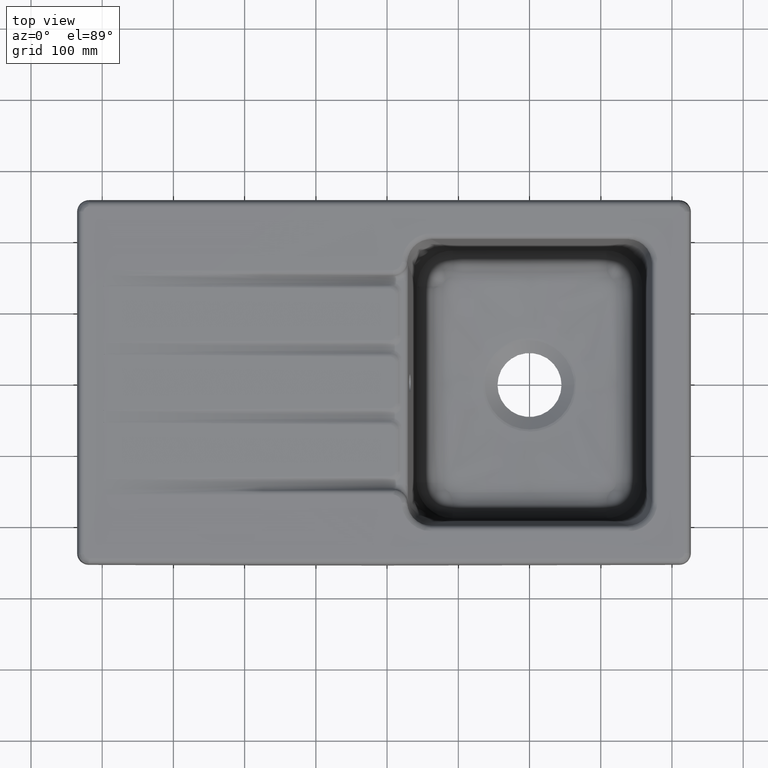
[diagram: clean part render]
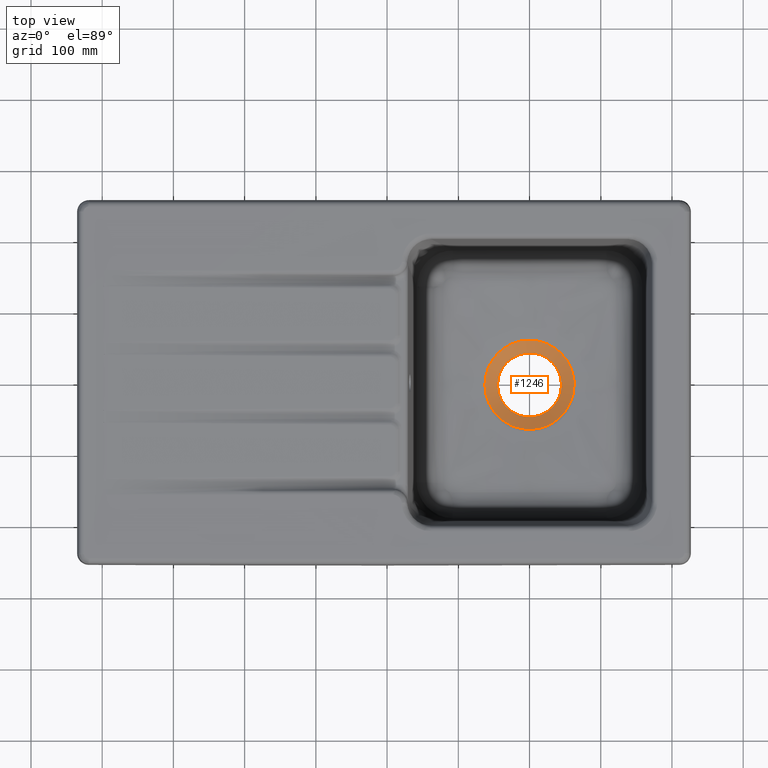
[diagram: same view with one face highlighted and labeled with its STEP entity id]
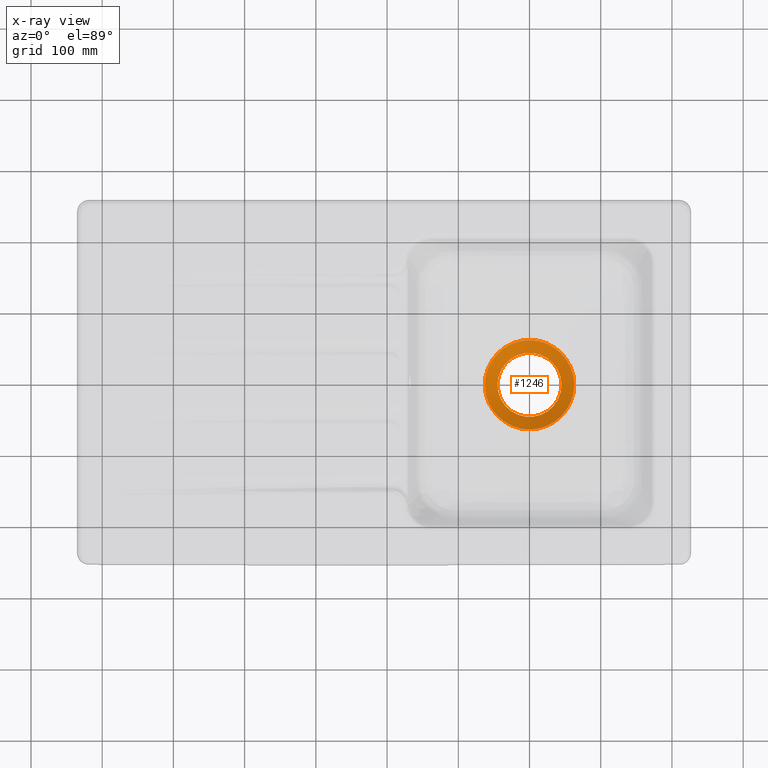
[diagram: x-ray of the same camera — body ghosted, the highlighted face saturated]
A machine part, top view. The second image highlights one B-rep face of the part: STEP entity #1246.
The next image is the same camera in x-ray: the body ghosted, the highlighted face saturated — about 0% of this face is hidden behind the body in this view.
In plain terms, the highlighted conical surface has half-angle 59 deg.
Its self-contained STEP definition (entity closure, byte-faithful):
#1246=ADVANCED_FACE('',(#1697,#1698),#1545,.F.);
#1545=CONICAL_SURFACE('',#4632,44.95986,59.0000000000001);
#1547=CIRCLE('',#4631,44.95986);
#1697=FACE_BOUND('',#1723,.T.);
#1698=FACE_BOUND('',#1724,.T.);
#1723=EDGE_LOOP('',(#2035));
#1724=EDGE_LOOP('',(#2036));
#2035=ORIENTED_EDGE('',*,*,#3871,.F.);
#2036=ORIENTED_EDGE('',*,*,#3872,.F.);
#3451=VERTEX_POINT('',#5707);
#3452=VERTEX_POINT('',#5709);
#3871=EDGE_CURVE('',#3451,#3451,#4579,.T.);
#3872=EDGE_CURVE('',#3452,#3452,#1547,.T.);
#4579=(
BOUNDED_CURVE()
B_SPLINE_CURVE(3,(#5624,#5625,#5626,#5627,#5628,#5629,#5630,#5631,#5632,
#5633,#5634,#5635,#5636,#5637,#5638,#5639,#5640,#5641,#5642,#5643,#5644,
#5645,#5646,#5647,#5648,#5649,#5650,#5651,#5652,#5653,#5654,#5655,#5656,
#5657,#5658,#5659,#5660,#5661,#5662,#5663,#5664,#5665,#5666,#5667,#5668,
#5669,#5670,#5671,#5672,#5673,#5674,#5675,#5676,#5677,#5678,#5679,#5680,
#5681,#5682,#5683,#5684,#5685,#5686,#5687,#5688,#5689,#5690,#5691,#5692,
#5693,#5694,#5695,#5696,#5697,#5698,#5699,#5700,#5701,#5702,#5703,#5704,
#5705,#5706),.UNSPECIFIED.,.T.,.F.)
B_SPLINE_CURVE_WITH_KNOTS((1,3,2,2,2,2,2,2,2,2,2,2,2,2,2,2,2,2,2,2,2,2,
2,2,2,2,2,2,2,2,2,2,2,2,2,2,2,2,2,2,3,3,1),(-0.0169564540943699,0.,0.0142935459056301,
0.0299185459056301,0.0455435459056301,0.0767935459056301,0.10804354590563,
0.13929354590563,0.17054354590563,0.20179354590563,0.23304354590563,0.26429354590563,
0.29554354590563,0.31116854590563,0.32679354590563,0.35804354590563,0.38929354590563,
0.40491854590563,0.42054354590563,0.45179354590563,0.48304354590563,0.51429354590563,
0.54554354590563,0.56116854590563,0.57679354590563,0.60804354590563,0.63929354590563,
0.65491854590563,0.67054354590563,0.70179354590563,0.73304354590563,0.76429354590563,
0.79554354590563,0.81116854590563,0.82679354590563,0.85804354590563,0.88929354590563,
0.92054354590563,0.93616854590563,0.95179354590563,0.98304354590563,1.,
1.01429354590563),.UNSPECIFIED.)
CURVE()
GEOMETRIC_REPRESENTATION_ITEM()
RATIONAL_B_SPLINE_CURVE((1.,1.,1.,1.,1.,1.,1.,1.,1.,1.,1.,1.,1.,1.,1.,1.,
1.,1.,1.,1.,1.,1.,1.,1.,1.,1.,1.,1.,1.,1.,1.,1.,1.,1.,1.,1.,1.,1.,1.,1.,
1.,1.,1.,1.,1.,1.,1.,1.,1.,1.,1.,1.,1.,1.,1.,1.,1.,1.,1.,1.,1.,1.,1.,1.,
1.,1.,1.,1.,1.,1.,1.,1.,1.,1.,1.,1.,1.,1.,1.,1.,1.,1.,1.))
REPRESENTATION_ITEM('')
);
#4631=AXIS2_PLACEMENT_3D('',#5708,#4925,#4926);
#4632=AXIS2_PLACEMENT_3D('',#5710,#4927,#4928);
#4925=DIRECTION('',(0.,0.,1.));
#4926=DIRECTION('',(1.,0.,0.));
#4927=DIRECTION('',(0.,0.,1.));
#4928=DIRECTION('',(-1.,0.,9.44694126252381E-19));
#5624=CARTESIAN_POINT('',(62.6513121737539,-0.000687846754740193,10.6296574768682));
#5625=CARTESIAN_POINT('',(62.6517855841085,-1.87053132835341,10.6300017272112));
#5626=CARTESIAN_POINT('',(62.5679545531761,-3.73516312498252,10.6302309719763));
#5627=CARTESIAN_POINT('',(62.2186801468424,-7.62733230738113,10.6300409750254));
#5628=CARTESIAN_POINT('',(61.9364400789383,-9.65384058328186,10.629634817344));
#5629=CARTESIAN_POINT('',(61.1683650372203,-13.6942409786682,10.6285887948189));
#5630=CARTESIAN_POINT('',(60.6797836960677,-15.713669806448,10.627949836084));
#5631=CARTESIAN_POINT('',(58.9398176534323,-21.6229830771959,10.6272342346017));
#5632=CARTESIAN_POINT('',(57.4096919226747,-25.4064644186353,10.6272487837991));
#5633=CARTESIAN_POINT('',(53.6119096773827,-32.6624628092967,10.6258684543965));
#5634=CARTESIAN_POINT('',(51.3227623384083,-36.1496455076644,10.6249679343781));
#5635=CARTESIAN_POINT('',(46.1884824350735,-42.5105248313113,10.6235187048399));
#5636=CARTESIAN_POINT('',(43.3274009128685,-45.4246757609283,10.6229155785508));
#5637=CARTESIAN_POINT('',(37.0044312331702,-50.7087556365486,10.6231121798728));
#5638=CARTESIAN_POINT('',(33.5884435563302,-53.0347874704466,10.6254557797777));
#5639=CARTESIAN_POINT('',(26.429519346147,-56.9542686621648,10.6323419626264));
#5640=CARTESIAN_POINT('',(22.6343130743037,-58.5772316870197,10.6369008973561));
#5641=CARTESIAN_POINT('',(14.7683887585838,-61.0511899285104,10.6452848951364));
#5642=CARTESIAN_POINT('',(10.7703522001244,-61.8854986222679,10.6489747919052));
#5643=CARTESIAN_POINT('',(2.64718899400896,-62.7671378762606,10.6533158318586));
#5644=CARTESIAN_POINT('',(-1.52321916982481,-62.8062100132987,10.6539048865563));
#5645=CARTESIAN_POINT('',(-9.68439357233555,-62.0695821144069,10.6514142259304));
#5646=CARTESIAN_POINT('',(-13.693249653771,-61.3053554692387,10.6484000767262));
#5647=CARTESIAN_POINT('',(-19.5986407806404,-59.564077142854,10.6425019458241));
#5648=CARTESIAN_POINT('',(-21.5593931565957,-58.8790701706426,10.6403079058146));
#5649=CARTESIAN_POINT('',(-25.3733059012307,-57.3308134514358,10.6358707527796));
#5650=CARTESIAN_POINT('',(-27.2299343799738,-56.4678914503257,10.633627791162));
#5651=CARTESIAN_POINT('',(-32.6527827799979,-53.6197083999723,10.6272924343518));
#5652=CARTESIAN_POINT('',(-36.0734122537506,-51.3775914116842,10.6236235281295));
#5653=CARTESIAN_POINT('',(-42.5117787575204,-46.1823019029171,10.6193469443788));
#5654=CARTESIAN_POINT('',(-45.4306734394674,-43.307769116436,10.6188801004214));
#5655=CARTESIAN_POINT('',(-49.360379019468,-38.612635377312,10.6206514438594));
#5656=CARTESIAN_POINT('',(-50.5955064625144,-36.9820180683742,10.6212890082618));
#5657=CARTESIAN_POINT('',(-52.9128317097768,-33.5866737439456,10.6225239555088));
#5658=CARTESIAN_POINT('',(-53.9981898531237,-31.8142760379517,10.6231178737564));
#5659=CARTESIAN_POINT('',(-56.953391051028,-26.4054033663344,10.6246448209656));
#5660=CARTESIAN_POINT('',(-58.5487170743966,-22.6490623748423,10.6252844059175));
#5661=CARTESIAN_POINT('',(-60.9999118344744,-14.8396270341962,10.6265863559739));
#5662=CARTESIAN_POINT('',(-61.8525766919071,-10.7602044860187,10.6271793369943));
#5663=CARTESIAN_POINT('',(-62.7330098443386,-2.57462140239587,10.6297495027256));
#5664=CARTESIAN_POINT('',(-62.7668887785764,1.5930357451583,10.6314441459716));
#5665=CARTESIAN_POINT('',(-62.0256672476441,9.74530255264558,10.631128768409));
#5666=CARTESIAN_POINT('',(-61.2592677385097,13.7543393633852,10.6291523755402));
#5667=CARTESIAN_POINT('',(-59.5154473250131,19.6671319630248,10.627580193591));
#5668=CARTESIAN_POINT('',(-58.830644091031,21.6290753178937,10.627470939639));
#5669=CARTESIAN_POINT('',(-57.285878659888,25.4373228001075,10.6268364837007));
#5670=CARTESIAN_POINT('',(-56.4245330852308,27.2923272517826,10.6264890463563));
#5671=CARTESIAN_POINT('',(-53.5792432044986,32.7130923623678,10.6254780832463));
#5672=CARTESIAN_POINT('',(-51.3308948643901,36.143064931618,10.624832775889));
#5673=CARTESIAN_POINT('',(-46.1341147400109,42.5745687006768,10.6237226546072));
#5674=CARTESIAN_POINT('',(-43.2621626192391,45.4843778117775,10.6233179246816));
#5675=CARTESIAN_POINT('',(-38.5589235761491,49.4070024739542,10.6228460860198));
#5676=CARTESIAN_POINT('',(-36.9254125630563,50.6409999169935,10.6232601920589));
#5677=CARTESIAN_POINT('',(-33.5233788538568,52.9580507681872,10.6250592095731));
#5678=CARTESIAN_POINT('',(-31.7521105872376,54.0410739042697,10.6264437935401));
#5679=CARTESIAN_POINT('',(-26.3502939374392,56.990980732497,10.6314718505443));
#5680=CARTESIAN_POINT('',(-22.5959808576809,58.588540589835,10.6359994671216));
#5681=CARTESIAN_POINT('',(-14.780874824527,61.0450366366478,10.6445103153434));
#5682=CARTESIAN_POINT('',(-10.6986510967458,61.8970286020981,10.6484424919205));
#5683=CARTESIAN_POINT('',(-2.57479988154936,62.7698364637612,10.6531329497088));
#5684=CARTESIAN_POINT('',(1.50870561313133,62.808242382132,10.6539264883598));
#5685=CARTESIAN_POINT('',(9.71992775803457,62.0663885571968,10.6518278131431));
#5686=CARTESIAN_POINT('',(13.7736501740824,61.286682059839,10.6489477867646));
#5687=CARTESIAN_POINT('',(19.6432161276365,59.550354733089,10.6432855424061));
#5688=CARTESIAN_POINT('',(21.5717342288148,58.8758502501921,10.6411858782639));
#5689=CARTESIAN_POINT('',(25.3720312172149,57.3329019799355,10.6368527299825));
#5690=CARTESIAN_POINT('',(27.2538968091845,56.4587813272129,10.634607957038));
#5691=CARTESIAN_POINT('',(32.7216540008281,53.5822648539435,10.6282464462161));
#5692=CARTESIAN_POINT('',(36.1313094334631,51.334877127122,10.6245457259154));
#5693=CARTESIAN_POINT('',(42.4918728091502,46.1977237232916,10.6199787188208));
#5694=CARTESIAN_POINT('',(45.4655466294465,43.2728571657386,10.619136451962));
#5695=CARTESIAN_POINT('',(50.7129299129161,36.9893011251269,10.620832327459));
#5696=CARTESIAN_POINT('',(53.0117410259918,33.6182175891304,10.6223184272288));
#5697=CARTESIAN_POINT('',(55.9660792394759,28.2129886910418,10.6242067521763));
#5698=CARTESIAN_POINT('',(56.8714502624146,26.3428430027444,10.6247877430644));
#5699=CARTESIAN_POINT('',(58.4779570329907,22.5575097987684,10.6257731767544));
#5700=CARTESIAN_POINT('',(59.1831649574743,20.6370624943386,10.6261835826282));
#5701=CARTESIAN_POINT('',(61.0113299070485,14.7942761436186,10.6272586621251));
#5702=CARTESIAN_POINT('',(61.849330286311,10.7912633489326,10.6275706212881));
#5703=CARTESIAN_POINT('',(62.2915792216979,6.67600740044559,10.6282890401299));
#5704=CARTESIAN_POINT('',(62.5315463823753,4.44304264597831,10.6286788588855));
#5705=CARTESIAN_POINT('',(62.6507505663685,2.2175101685394,10.6292490921904));
#5706=CARTESIAN_POINT('',(62.6513121737539,-0.000687846754740193,10.6296574768682));
#5707=CARTESIAN_POINT('',(62.6510093482493,-0.000687918356821442,10.6296952357101));
#5708=CARTESIAN_POINT('',(1.10923270568719E-13,1.10923270568719E-13,-4.95605172901037E-10));
#5709=CARTESIAN_POINT('',(44.9598600000001,1.10923270568719E-13,-4.95605172901037E-10));
#5710=CARTESIAN_POINT('',(1.10923270568719E-13,1.10923270568719E-13,-4.95605172901037E-10));